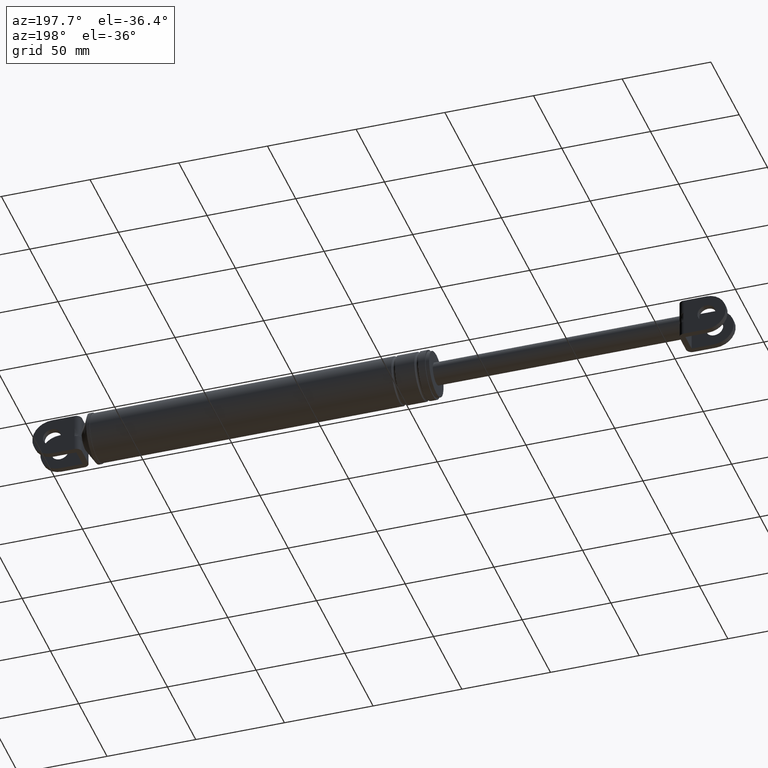
[diagram: clean part render]
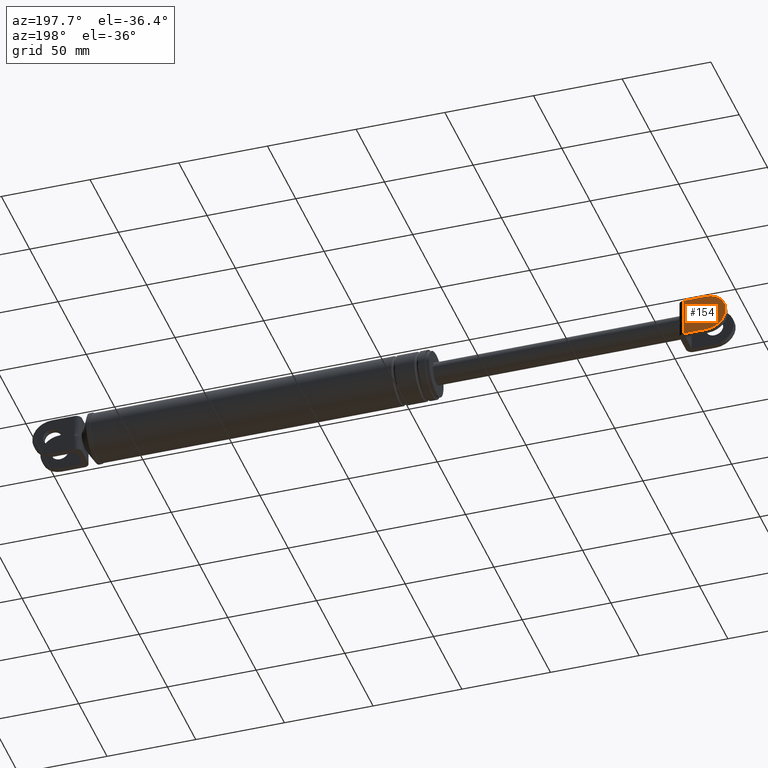
[diagram: same view with one face highlighted and labeled with its STEP entity id]
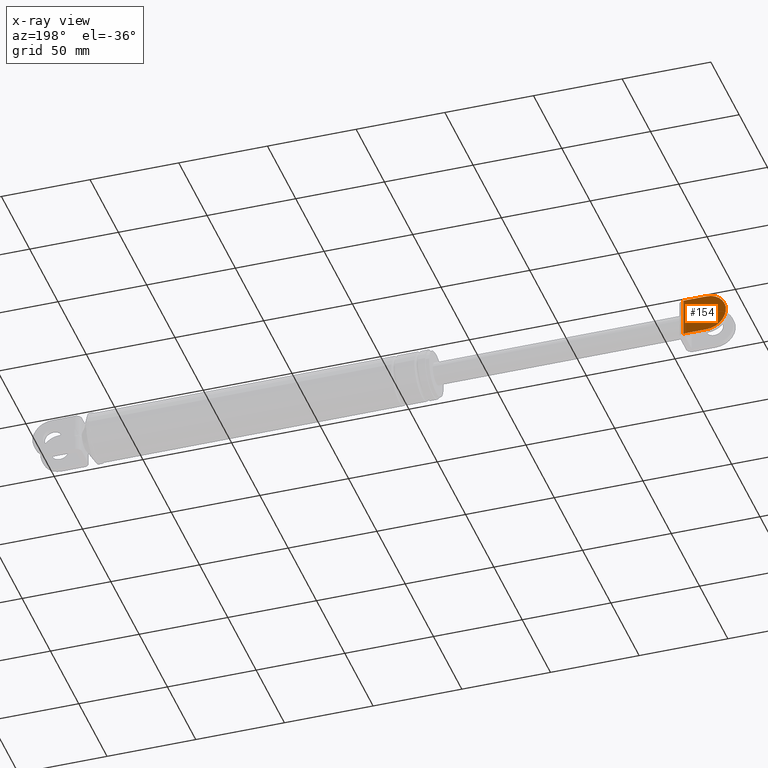
[diagram: x-ray of the same camera — body ghosted, the highlighted face saturated]
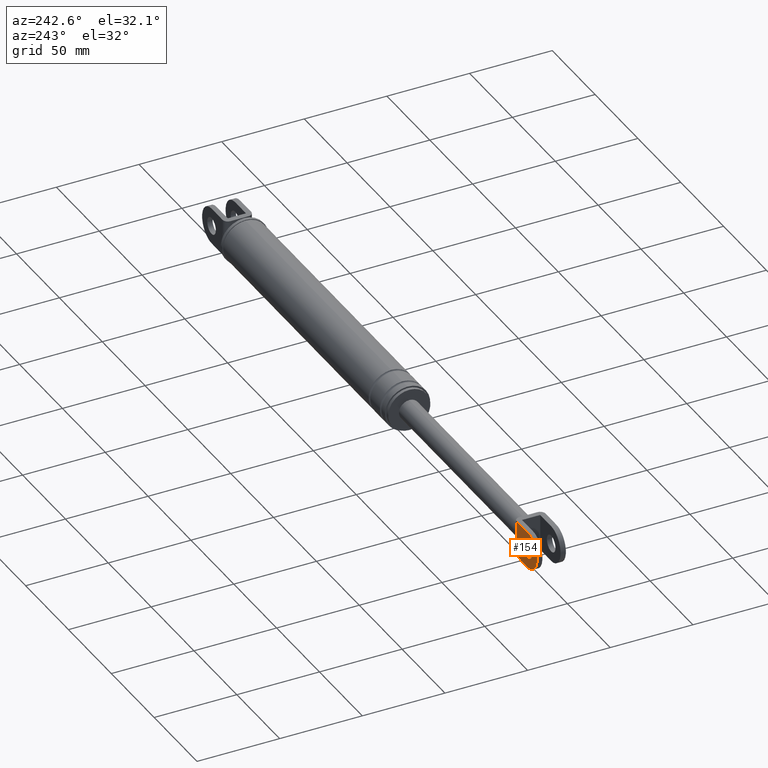
[diagram: same view with one face highlighted and labeled with its STEP entity id]
A machine part, auxiliary view. The second image highlights one B-rep face of the part: STEP entity #154.
The next image is the same camera in x-ray: the body ghosted, the highlighted face saturated — about 0% of this face is hidden behind the body in this view.
A second angle (auxiliary view) of the same face is appended — the face is thin or edge-on in the first view.
In plain terms, the highlighted planar face has unit normal (0, 1, 0).
Its self-contained STEP definition (entity closure, byte-faithful):
#154=ADVANCED_FACE('',(#604,#605),#603,.T.);
#603=PLANE('',#1260);
#604=FACE_OUTER_BOUND('',#1261,.T.);
#605=FACE_BOUND('',#1262,.T.);
#1257=CARTESIAN_POINT('',(1.61906994621E+001,8.69999700000E+000,1.70566279997E+002));
#1258=DIRECTION('',(0.00000000000E+000,1.00000000000E+000,0.00000000000E+000));
#1259=DIRECTION('',(0.00000000000E+000,0.00000000000E+000,1.00000000000E+000));
#1260=AXIS2_PLACEMENT_3D('',#1257,#1258,#1259);
#1261=EDGE_LOOP('',(#1596,#1597,#1598,#1599,#1600,#1601));
#1262=EDGE_LOOP('',(#1602,#1603));
#1596=ORIENTED_EDGE('',*,*,#1813,.T.);
#1597=ORIENTED_EDGE('',*,*,#1814,.T.);
#1598=ORIENTED_EDGE('',*,*,#1815,.T.);
#1599=ORIENTED_EDGE('',*,*,#1816,.T.);
#1600=ORIENTED_EDGE('',*,*,#1817,.F.);
#1601=ORIENTED_EDGE('',*,*,#1818,.F.);
#1602=ORIENTED_EDGE('',*,*,#1819,.T.);
#1603=ORIENTED_EDGE('',*,*,#1820,.T.);
#1813=EDGE_CURVE('',#2562,#2563,#2564,.T.);
#1814=EDGE_CURVE('',#2563,#2570,#2571,.T.);
#1815=EDGE_CURVE('',#2570,#2577,#2578,.T.);
#1816=EDGE_CURVE('',#2577,#2584,#2585,.T.);
#1817=EDGE_CURVE('',#2591,#2584,#2592,.T.);
#1818=EDGE_CURVE('',#2562,#2591,#2598,.T.);
#1819=EDGE_CURVE('',#2604,#2605,#2606,.T.);
#1820=EDGE_CURVE('',#2605,#2604,#2612,.T.);
#2562=VERTEX_POINT('',#3350);
#2563=VERTEX_POINT('',#3351);
#2564=LINE('',#3352,#3353);
#2570=VERTEX_POINT('',#3355);
#2571=LINE('',#3356,#3357);
#2577=VERTEX_POINT('',#3359);
#2578=(BOUNDED_CURVE() B_SPLINE_CURVE(3,(#3360,#3361,#3362,#3363,#3364,#3365,#3366,#3367,#3368,#3369),.UNSPECIFIED.,.F.,.F.) B_SPLINE_CURVE_WITH_KNOTS((4,2,2,2,4),(0.00000000000E+000,1.48651353192E-003,2.97302706385E-003,4.45954059577E-003,5.94605412770E-003),.UNSPECIFIED.) CURVE() GEOMETRIC_REPRESENTATION_ITEM() RATIONAL_B_SPLINE_CURVE((1.00000000000E+000,1.00000000000E+000,1.00000000000E+000,1.00000000000E+000,1.00000000000E+000,1.00000000000E+000,1.00000000000E+000,1.00000000000E+000,1.00000000000E+000,1.00000000000E+000)) REPRESENTATION_ITEM('') );
#2584=VERTEX_POINT('',#3370);
#2585=LINE('',#3371,#3372);
#2591=VERTEX_POINT('',#3374);
#2592=LINE('',#3375,#3376);
#2598=CIRCLE('',#3381,1.10000000000E+001);
#2604=VERTEX_POINT('',#3382);
#2605=VERTEX_POINT('',#3383);
#2606=CIRCLE('',#3387,5.00000000000E+000);
#2612=CIRCLE('',#3391,5.00000000000E+000);
#3350=CARTESIAN_POINT('',(2.95796146878E+001,8.69999700000E+000,1.94766279997E+002));
#3351=CARTESIAN_POINT('',(4.23796156477E+001,8.69999700000E+000,1.94766279997E+002));
#3352=CARTESIAN_POINT('',(2.95796146878E+001,8.69999700000E+000,1.94766279997E+002));
#3353=VECTOR('',#3354,1.28000009599E+001);
#3354=DIRECTION('',(1.00000000000E+000,0.00000000000E+000,0.00000000000E+000));
#3355=CARTESIAN_POINT('',(4.23796156477E+001,8.69999700000E+000,1.86734871077E+002));
#3356=CARTESIAN_POINT('',(4.23796156477E+001,8.69999700000E+000,1.94766279997E+002));
#3357=VECTOR('',#3358,8.03140892004E+000);
#3358=DIRECTION('',(0.00000000000E+000,0.00000000000E+000,-1.00000000000E+000));
#3359=CARTESIAN_POINT('',(4.23796156477E+001,8.69999700000E+000,1.80797688917E+002));
#3360=CARTESIAN_POINT('',(4.23796156477E+001,8.69999700000E+000,1.86734871077E+002));
#3361=CARTESIAN_POINT('',(4.23796156477E+001,8.69999700000E+000,1.86239365286E+002));
#3362=CARTESIAN_POINT('',(4.24052098286E+001,8.69999700000E+000,1.85744617969E+002));
#3363=CARTESIAN_POINT('',(4.24504623155E+001,8.69999700000E+000,1.84755051820E+002));
#3364=CARTESIAN_POINT('',(4.24687775047E+001,8.69999700000E+000,1.84259816832E+002));
#3365=CARTESIAN_POINT('',(4.24687190657E+001,8.69999700000E+000,1.83270049269E+002));
#3366=CARTESIAN_POINT('',(4.24503793783E+001,8.69999700000E+000,1.82775589209E+002));
#3367=CARTESIAN_POINT('',(4.24051558284E+001,8.69999700000E+000,1.81786866809E+002));
#3368=CARTESIAN_POINT('',(4.23796156477E+001,8.69999700000E+000,1.81292573375E+002));
#3369=CARTESIAN_POINT('',(4.23796156477E+001,8.69999700000E+000,1.80797688917E+002));
#3370=CARTESIAN_POINT('',(4.23796156477E+001,8.69999700000E+000,1.72766279997E+002));
#3371=CARTESIAN_POINT('',(4.23796156477E+001,8.69999700000E+000,1.80797688917E+002));
#3372=VECTOR('',#3373,8.03140892004E+000);
#3373=DIRECTION('',(0.00000000000E+000,0.00000000000E+000,-1.00000000000E+000));
#3374=CARTESIAN_POINT('',(2.95796146878E+001,8.69999700000E+000,1.72766279997E+002));
#3375=CARTESIAN_POINT('',(2.95796146878E+001,8.69999700000E+000,1.72766279997E+002));
#3376=VECTOR('',#3377,1.28000009599E+001);
#3377=DIRECTION('',(1.00000000000E+000,0.00000000000E+000,0.00000000000E+000));
#3378=CARTESIAN_POINT('',(2.95796156477E+001,8.69999700000E+000,1.83766279997E+002));
#3379=DIRECTION('',(0.00000000000E+000,-1.00000000000E+000,0.00000000000E+000));
#3380=DIRECTION('',(-0.00000000000E+000,-0.00000000000E+000,-1.00000000000E+000));
#3381=AXIS2_PLACEMENT_3D('',#3378,#3379,#3380);
#3382=CARTESIAN_POINT('',(2.95796156477E+001,8.69999700000E+000,1.88766279997E+002));
#3383=CARTESIAN_POINT('',(2.95796156477E+001,8.69999700000E+000,1.78766279997E+002));
#3384=CARTESIAN_POINT('',(2.95796156477E+001,8.69999700000E+000,1.83766279997E+002));
#3385=DIRECTION('',(-0.00000000000E+000,-1.00000000000E+000,0.00000000000E+000));
#3386=DIRECTION('',(-1.22460635382E-016,0.00000000000E+000,1.00000000000E+000));
#3387=AXIS2_PLACEMENT_3D('',#3384,#3385,#3386);
#3388=CARTESIAN_POINT('',(2.95796156477E+001,8.69999700000E+000,1.83766279997E+002));
#3389=DIRECTION('',(-0.00000000000E+000,-1.00000000000E+000,0.00000000000E+000));
#3390=DIRECTION('',(-1.22460635382E-016,0.00000000000E+000,1.00000000000E+000));
#3391=AXIS2_PLACEMENT_3D('',#3388,#3389,#3390);